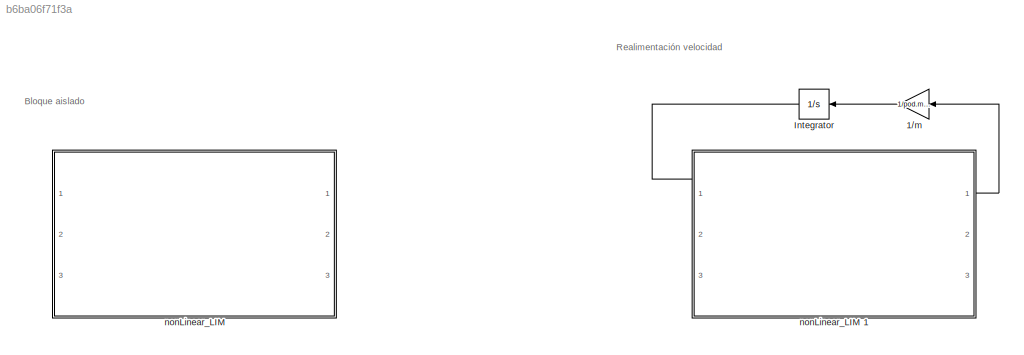
MODEL slx_b6ba06f71f3a
KIND model
CONFIG AbsTol = auto
CONFIG EnableMultiTasking = off
CONFIG FixedStep = auto
CONFIG MaxStep = auto
CONFIG MinStep = auto
CONFIG RelTol = 1e-3
CONFIG SampleTimeConstraint = Unconstrained
CONFIG SolverName = VariableStepAuto
CONFIG StartTime = 0.0
CONFIG StopTime = 10.0
BLOCK [Gain] 1//m
  Commented = on
  Gain = 1/pod.mass.mass
  NameLocation = top
BLOCK [Integrator] Integrator
  Commented = on
  NameLocation = top
  Ports = [1, 1]
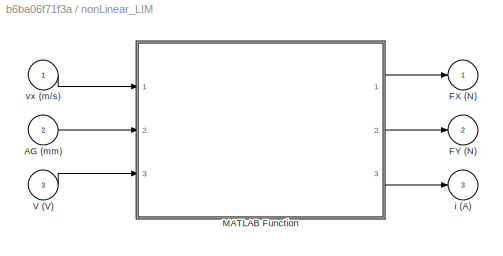
BLOCK [SubSystem] nonLinear_LIM 
  Ports = [3, 3]
  RequestExecContextInheritance = off
  TreatAsAtomicUnit = on
BLOCK [Inport] nonLinear_LIM /AG (mm)
  Port = 2
BLOCK [Outport] nonLinear_LIM /FX (N)
BLOCK [Outport] nonLinear_LIM /FY (N)
  Port = 2
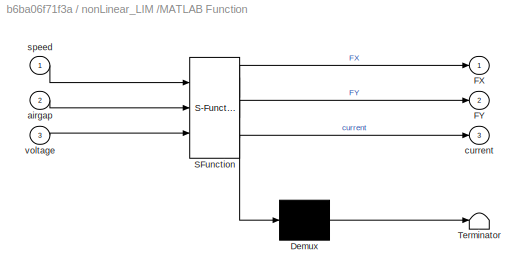
BLOCK [SubSystem] nonLinear_LIM /MATLAB Function
  ErrorFcn = Stateflow.Translate.translate
  PermitHierarchicalResolution = ExplicitOnly
  Ports = [3, 3]
  RequestExecContextInheritance = off
  SFBlockType = MATLAB Function
  TreatAsAtomicUnit = on
BLOCK [Demux] nonLinear_LIM /MATLAB Function/ Demux 
  Outputs = 1
  Ports = [1, 1]
BLOCK [S-Function] nonLinear_LIM /MATLAB Function/ SFunction 
  EnableBusSupport = on
  FunctionName = sf_sfun
  Parameters = pod
  PortCounts = [3 4]
  Ports = [3, 4]
  SFcnIsStateOwnerBlock = off
  SFunctionDeploymentMode = off
  Tag = Stateflow S-Function 2
BLOCK [Terminator] nonLinear_LIM /MATLAB Function/ Terminator 
BLOCK [Outport] nonLinear_LIM /MATLAB Function/FX
BLOCK [Outport] nonLinear_LIM /MATLAB Function/FY
  Port = 2
BLOCK [Inport] nonLinear_LIM /MATLAB Function/airgap
  Port = 2
BLOCK [Outport] nonLinear_LIM /MATLAB Function/current
  Port = 3
BLOCK [Inport] nonLinear_LIM /MATLAB Function/speed
BLOCK [Inport] nonLinear_LIM /MATLAB Function/voltage
  Port = 3
BLOCK [Inport] nonLinear_LIM /V (V)
  Port = 3
BLOCK [Outport] nonLinear_LIM /i (A)
  Port = 3
BLOCK [Inport] nonLinear_LIM /vx (m//s)
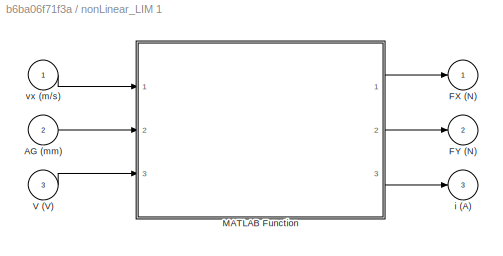
BLOCK [SubSystem] nonLinear_LIM 1
  Commented = on
  Ports = [3, 3]
  RequestExecContextInheritance = off
  TreatAsAtomicUnit = on
BLOCK [Inport] nonLinear_LIM 1/AG (mm)
  Port = 2
BLOCK [Outport] nonLinear_LIM 1/FX (N)
BLOCK [Outport] nonLinear_LIM 1/FY (N)
  Port = 2
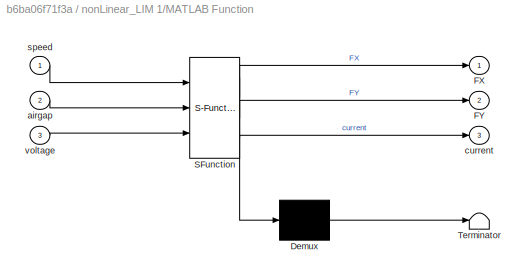
BLOCK [SubSystem] nonLinear_LIM 1/MATLAB Function
  ErrorFcn = Stateflow.Translate.translate
  PermitHierarchicalResolution = ExplicitOnly
  Ports = [3, 3]
  RequestExecContextInheritance = off
  SFBlockType = MATLAB Function
  TreatAsAtomicUnit = on
BLOCK [Demux] nonLinear_LIM 1/MATLAB Function/ Demux 
  Outputs = 1
  Ports = [1, 1]
BLOCK [S-Function] nonLinear_LIM 1/MATLAB Function/ SFunction 
  EnableBusSupport = on
  FunctionName = sf_sfun
  Parameters = pod
  PortCounts = [3 4]
  Ports = [3, 4]
  SFcnIsStateOwnerBlock = off
  SFunctionDeploymentMode = off
  Tag = Stateflow S-Function 1
BLOCK [Terminator] nonLinear_LIM 1/MATLAB Function/ Terminator 
BLOCK [Outport] nonLinear_LIM 1/MATLAB Function/FX
BLOCK [Outport] nonLinear_LIM 1/MATLAB Function/FY
  Port = 2
BLOCK [Inport] nonLinear_LIM 1/MATLAB Function/airgap
  Port = 2
BLOCK [Outport] nonLinear_LIM 1/MATLAB Function/current
  Port = 3
BLOCK [Inport] nonLinear_LIM 1/MATLAB Function/speed
BLOCK [Inport] nonLinear_LIM 1/MATLAB Function/voltage
  Port = 3
BLOCK [Inport] nonLinear_LIM 1/V (V)
  Port = 3
BLOCK [Outport] nonLinear_LIM 1/i (A)
  Port = 3
BLOCK [Inport] nonLinear_LIM 1/vx (m//s)
ANNOTATION (root): Bloque aislado
ANNOTATION (root): Realimentación velocidad
LINE 1//m:1 -> Integrator:1
LINE Integrator:1 -> nonLinear_LIM 1:1
LINE nonLinear_LIM /AG (mm):1 -> nonLinear_LIM /MATLAB Function:2
LINE nonLinear_LIM /MATLAB Function:1 -> nonLinear_LIM /FX (N):1
LINE nonLinear_LIM /MATLAB Function:2 -> nonLinear_LIM /FY (N):1
LINE nonLinear_LIM /MATLAB Function:3 -> nonLinear_LIM /i (A):1
LINE nonLinear_LIM /V (V):1 -> nonLinear_LIM /MATLAB Function:3
LINE nonLinear_LIM /vx (m//s):1 -> nonLinear_LIM /MATLAB Function:1
LINE nonLinear_LIM 1/AG (mm):1 -> nonLinear_LIM 1/MATLAB Function:2
LINE nonLinear_LIM 1/MATLAB Function:1 -> nonLinear_LIM 1/FX (N):1
LINE nonLinear_LIM 1/MATLAB Function:2 -> nonLinear_LIM 1/FY (N):1
LINE nonLinear_LIM 1/MATLAB Function:3 -> nonLinear_LIM 1/i (A):1
LINE nonLinear_LIM 1/V (V):1 -> nonLinear_LIM 1/MATLAB Function:3
LINE nonLinear_LIM 1/vx (m//s):1 -> nonLinear_LIM 1/MATLAB Function:1
LINE nonLinear_LIM 1:1 -> 1//m:1
CHART nonLinear_LIM 1/MATLAB Function states=1 transitions=1
  STATE_LABEL 'eML_blk_kernel()'
  STATE_LABEL 'SCRIPT:\nfunction [FX, FY, current] = nonlinearLIM(speed, airgap, voltage, pod)\n% Computes the forces (traction and transversal, both in N) and the current\n% consumed by the motor, as a function of speed (m/s), airgap (mm) and\n% voltage (V)\n% ═════════════════════════════════════════════════════════════════════════\n% Last updated: 03.02.2022\n% ═══════════════════════════════════════════════════════...<+657ch>'
CHART nonLinear_LIM /MATLAB Function states=1 transitions=1
  STATE_LABEL 'eML_blk_kernel()'
  STATE_LABEL 'SCRIPT:\nfunction [FX, FY, current] = nonlinearLIM(speed, airgap, voltage, pod)\n% Computes the forces (traction and transversal, both in N) and the current\n% consumed by the motor, as a function of speed (m/s), airgap (mm) and\n% voltage (V)\n% ═════════════════════════════════════════════════════════════════════════\n% Last updated: 03.02.2022\n% ═══════════════════════════════════════════════════════...<+657ch>'
CHART  states=0 transitions=0
CHART  states=0 transitions=0
